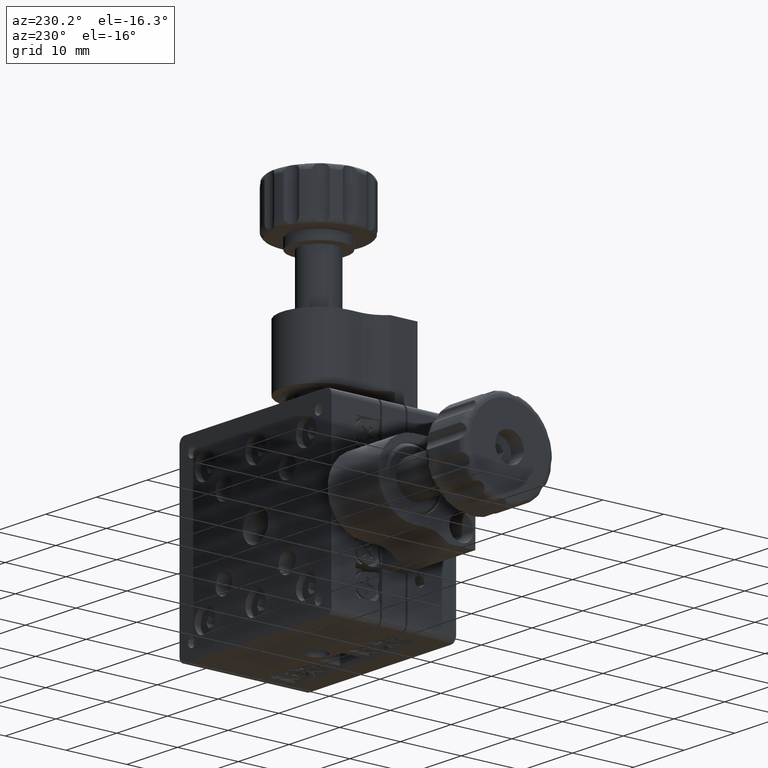
[diagram: clean part render]
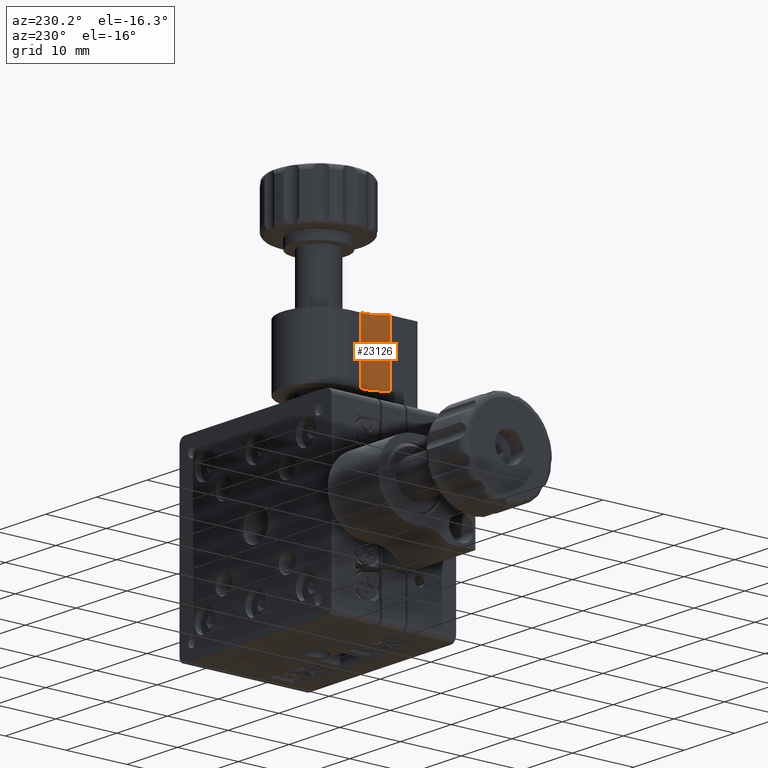
[diagram: same view with one face highlighted and labeled with its STEP entity id]
A machine part, auxiliary view. The second image highlights one B-rep face of the part: STEP entity #23126.
In plain terms, the highlighted cylindrical surface (partial cylindrical patch) has radius 5 mm, axis along (0, 0, 1).
Its self-contained STEP definition (entity closure, byte-faithful):
#135 = VECTOR ( 'NONE', #26934, 1000.000000000000000 ) ;
#3523 = CARTESIAN_POINT ( 'NONE',  ( -5.999999999999992900, 8.170714214271406200, 28.99999999999998200 ) ) ;
#5046 = CYLINDRICAL_SURFACE ( 'NONE', #10696, 5.000000000000011500 ) ;
#6936 = ORIENTED_EDGE ( 'NONE', *, *, #35214, .T. ) ;
#7391 = ORIENTED_EDGE ( 'NONE', *, *, #46241, .F. ) ;
#7908 = LINE ( 'NONE', #13154, #20973 ) ;
#10696 = AXIS2_PLACEMENT_3D ( 'NONE', #29080, #33228, #36694 ) ;
#11730 = DIRECTION ( 'NONE',  ( -2.449293598294703500E-016, -2.502990618582218400E-030, -1.000000000000000000 ) ) ;
#12129 = EDGE_LOOP ( 'NONE', ( #7391, #6936, #35768, #34049 ) ) ;
#13154 = CARTESIAN_POINT ( 'NONE',  ( -7.500000000000007100, 4.599999999999974800, 14.99999999999999300 ) ) ;
#17190 = DIRECTION ( 'NONE',  ( 2.449293598294703500E-016, 2.502990618582218400E-030, 1.000000000000000000 ) ) ;
#19100 = CARTESIAN_POINT ( 'NONE',  ( -11.00000000000000500, 8.170714214271409800, 18.99999999999998200 ) ) ;
#20097 = CARTESIAN_POINT ( 'NONE',  ( -5.999999999999995600, 8.170714214271406200, 18.99999999999999600 ) ) ;
#20268 = AXIS2_PLACEMENT_3D ( 'NONE', #39065, #11730, #30757 ) ;
#20973 = VECTOR ( 'NONE', #17190, 1000.000000000000000 ) ;
#21490 = CIRCLE ( 'NONE', #20268, 5.000000000000013300 ) ;
#22895 = DIRECTION ( 'NONE',  ( 1.000000000000000000, -6.938893903907212600E-016, 0.0000000000000000000 ) ) ;
#23126 = ADVANCED_FACE ( 'NONE', ( #25501 ), #5046, .F. ) ;
#24688 = VERTEX_POINT ( 'NONE', #44604 ) ;
#25501 = FACE_OUTER_BOUND ( 'NONE', #12129, .T. ) ;
#25634 = CIRCLE ( 'NONE', #50017, 5.000000000000011500 ) ;
#26177 = DIRECTION ( 'NONE',  ( 2.449293598294703500E-016, 2.502990618582218400E-030, 1.000000000000000000 ) ) ;
#26428 = CARTESIAN_POINT ( 'NONE',  ( -5.999999999999996400, 8.170714214271406200, 14.99999999999999300 ) ) ;
#26934 = DIRECTION ( 'NONE',  ( 2.449293598294703500E-016, 2.502990618582218400E-030, 1.000000000000000000 ) ) ;
#29080 = CARTESIAN_POINT ( 'NONE',  ( -11.00000000000000700, 8.170714214271409800, 14.99999999999999500 ) ) ;
#29104 = CARTESIAN_POINT ( 'NONE',  ( -7.500000000000005300, 4.599999999999974800, 29.00000000000000000 ) ) ;
#30757 = DIRECTION ( 'NONE',  ( -1.000000000000000000, 6.938893903907209600E-016, 0.0000000000000000000 ) ) ;
#33228 = DIRECTION ( 'NONE',  ( 2.449293598294703500E-016, 2.502990618582218400E-030, 1.000000000000000000 ) ) ;
#34049 = ORIENTED_EDGE ( 'NONE', *, *, #43349, .F. ) ;
#35214 = EDGE_CURVE ( 'NONE', #24688, #42568, #7908, .T. ) ;
#35768 = ORIENTED_EDGE ( 'NONE', *, *, #41127, .F. ) ;
#36694 = DIRECTION ( 'NONE',  ( 1.000000000000000000, -6.938893903907212600E-016, -3.469446951953606300E-016 ) ) ;
#38152 = VERTEX_POINT ( 'NONE', #20097 ) ;
#39065 = CARTESIAN_POINT ( 'NONE',  ( -10.99999999999999500, 8.170714214271409800, 28.99999999999998600 ) ) ;
#39791 = LINE ( 'NONE', #26428, #135 ) ;
#41127 = EDGE_CURVE ( 'NONE', #41736, #42568, #21490, .T. ) ;
#41736 = VERTEX_POINT ( 'NONE', #3523 ) ;
#42568 = VERTEX_POINT ( 'NONE', #29104 ) ;
#43349 = EDGE_CURVE ( 'NONE', #38152, #41736, #39791, .T. ) ;
#44604 = CARTESIAN_POINT ( 'NONE',  ( -7.500000000000015100, 4.599999999999974800, 18.99999999999999600 ) ) ;
#46241 = EDGE_CURVE ( 'NONE', #24688, #38152, #25634, .T. ) ;
#50017 = AXIS2_PLACEMENT_3D ( 'NONE', #19100, #26177, #22895 ) ;